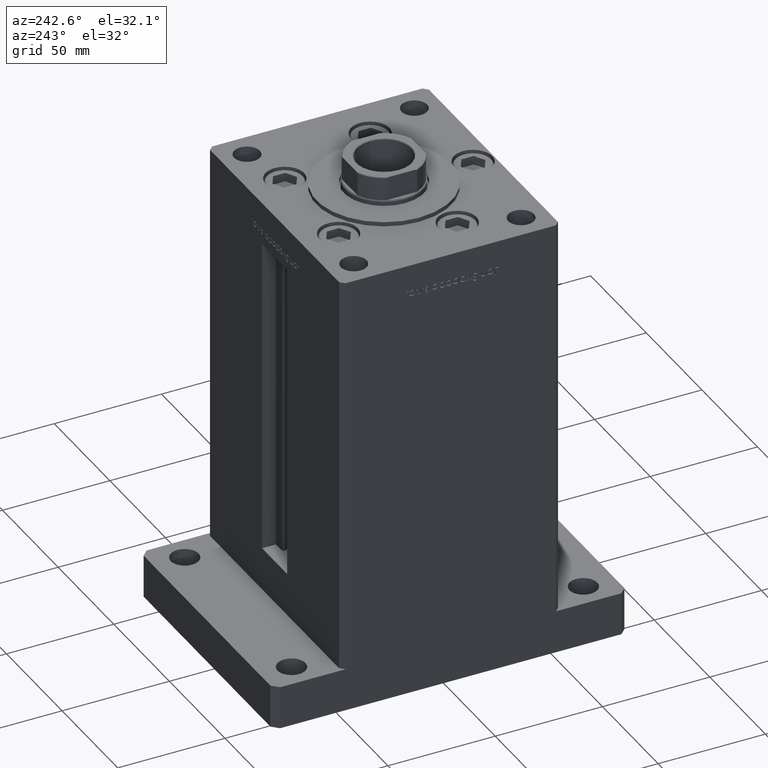
[diagram: clean part render]
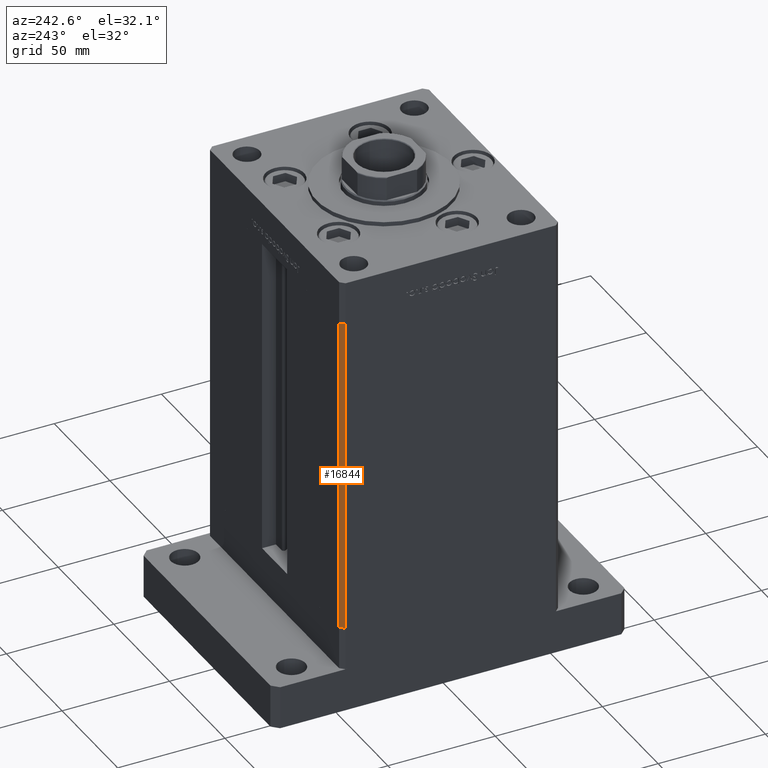
[diagram: same view with one face highlighted and labeled with its STEP entity id]
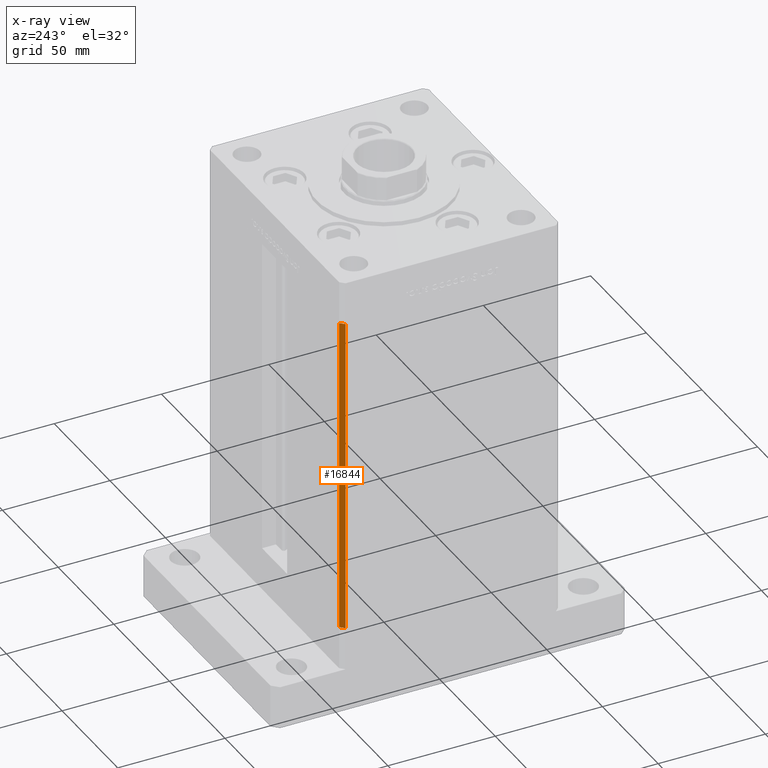
[diagram: x-ray of the same camera — body ghosted, the highlighted face saturated]
A machine part, auxiliary view. The second image highlights one B-rep face of the part: STEP entity #16844.
The next image is the same camera in x-ray: the body ghosted, the highlighted face saturated — about 0% of this face is hidden behind the body in this view.
In plain terms, the highlighted planar face has unit normal (0.7071, -0.7071, 0).
Its self-contained STEP definition (entity closure, byte-faithful):
#427 = VECTOR ( 'NONE', #34031, 1000.000000000000114 ) ;
#1259 = CARTESIAN_POINT ( 'NONE',  ( -60.00000000000001421, 49.00000000000000000, 148.5000000000000000 ) ) ;
#1766 = DIRECTION ( 'NONE',  ( -0.7071067811865500152, -0.7071067811865451302, 0.000000000000000000 ) ) ;
#3510 = VERTEX_POINT ( 'NONE', #49333 ) ;
#4358 = CARTESIAN_POINT ( 'NONE',  ( -57.99999999999999289, 51.00000000000000711, 148.5000000000000000 ) ) ;
#5710 = CARTESIAN_POINT ( 'NONE',  ( -57.99999999999999289, 51.00000000000000711, 148.5000000000000000 ) ) ;
#6848 = EDGE_CURVE ( 'NONE', #3510, #31042, #37122, .T. ) ;
#7475 = EDGE_CURVE ( 'NONE', #39299, #3510, #17591, .T. ) ;
#8413 = PLANE ( 'NONE',  #41963 ) ;
#8809 = VECTOR ( 'NONE', #1766, 1000.000000000000114 ) ;
#13125 = CARTESIAN_POINT ( 'NONE',  ( -57.99999999999999289, 51.00000000000000711, 0.000000000000000000 ) ) ;
#13457 = EDGE_CURVE ( 'NONE', #39299, #24331, #52476, .T. ) ;
#13688 = EDGE_LOOP ( 'NONE', ( #20879, #20270, #21374, #19494 ) ) ;
#16844 = ADVANCED_FACE ( 'NONE', ( #28896 ), #8413, .F. ) ;
#17591 = LINE ( 'NONE', #5710, #427 ) ;
#17688 = CARTESIAN_POINT ( 'NONE',  ( -57.99999999999999289, 51.00000000000000711, 0.000000000000000000 ) ) ;
#17955 = LINE ( 'NONE', #13125, #8809 ) ;
#19494 = ORIENTED_EDGE ( 'NONE', *, *, #13457, .T. ) ;
#20139 = CARTESIAN_POINT ( 'NONE',  ( -57.99999999999999289, 51.00000000000000711, 148.5000000000000000 ) ) ;
#20270 = ORIENTED_EDGE ( 'NONE', *, *, #6848, .F. ) ;
#20818 = DIRECTION ( 'NONE',  ( 0.7071067811865451302, -0.7071067811865499042, 0.000000000000000000 ) ) ;
#20879 = ORIENTED_EDGE ( 'NONE', *, *, #45030, .T. ) ;
#21374 = ORIENTED_EDGE ( 'NONE', *, *, #7475, .F. ) ;
#24331 = VERTEX_POINT ( 'NONE', #17688 ) ;
#27854 = CARTESIAN_POINT ( 'NONE',  ( -60.00000000000001421, 49.00000000000000000, 0.000000000000000000 ) ) ;
#28896 = FACE_OUTER_BOUND ( 'NONE', #13688, .T. ) ;
#29171 = DIRECTION ( 'NONE',  ( 0.7071067811865499042, 0.7071067811865451302, 0.000000000000000000 ) ) ;
#31042 = VERTEX_POINT ( 'NONE', #27854 ) ;
#33229 = VECTOR ( 'NONE', #36581, 1000.000000000000000 ) ;
#34031 = DIRECTION ( 'NONE',  ( -0.7071067811865500152, -0.7071067811865451302, 0.000000000000000000 ) ) ;
#36581 = DIRECTION ( 'NONE',  ( -0.000000000000000000, -0.000000000000000000, -1.000000000000000000 ) ) ;
#37122 = LINE ( 'NONE', #1259, #37467 ) ;
#37467 = VECTOR ( 'NONE', #45752, 1000.000000000000000 ) ;
#39299 = VERTEX_POINT ( 'NONE', #49840 ) ;
#41963 = AXIS2_PLACEMENT_3D ( 'NONE', #4358, #20818, #29171 ) ;
#45030 = EDGE_CURVE ( 'NONE', #24331, #31042, #17955, .T. ) ;
#45752 = DIRECTION ( 'NONE',  ( -0.000000000000000000, -0.000000000000000000, -1.000000000000000000 ) ) ;
#49333 = CARTESIAN_POINT ( 'NONE',  ( -60.00000000000001421, 49.00000000000000000, 148.5000000000000000 ) ) ;
#49840 = CARTESIAN_POINT ( 'NONE',  ( -57.99999999999999289, 51.00000000000000711, 148.5000000000000000 ) ) ;
#52476 = LINE ( 'NONE', #20139, #33229 ) ;